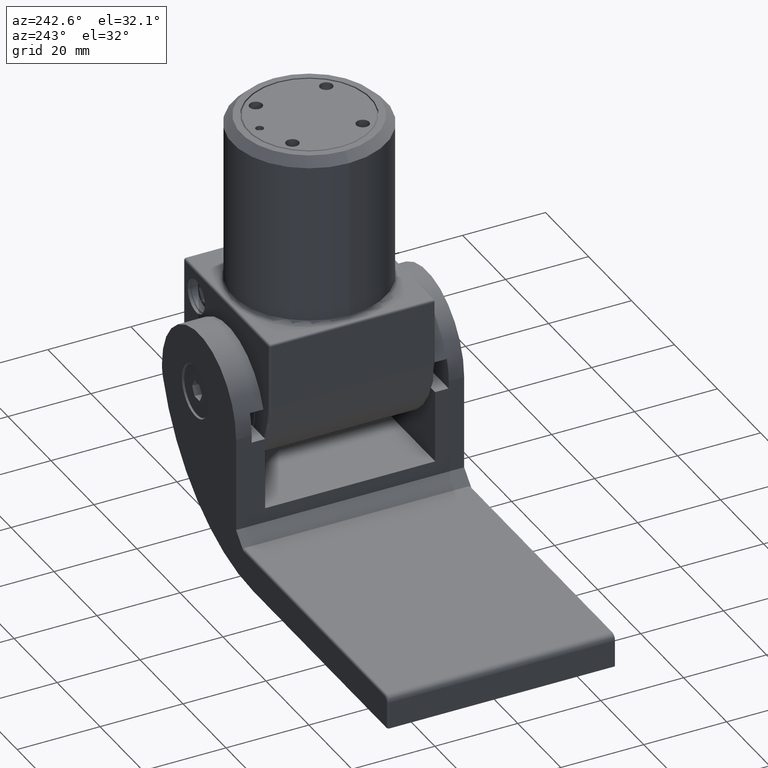
[diagram: clean part render]
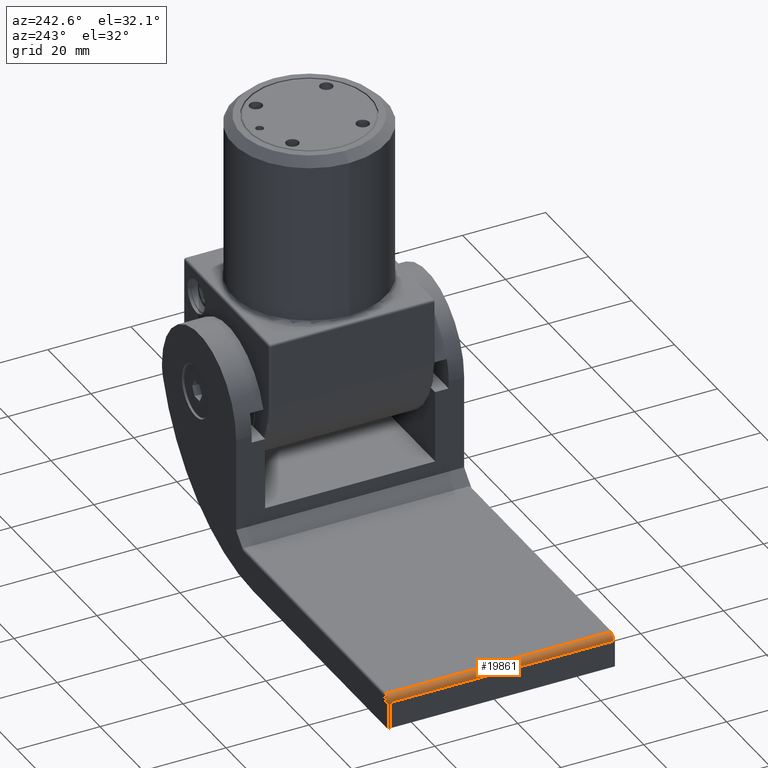
[diagram: same view with one face highlighted and labeled with its STEP entity id]
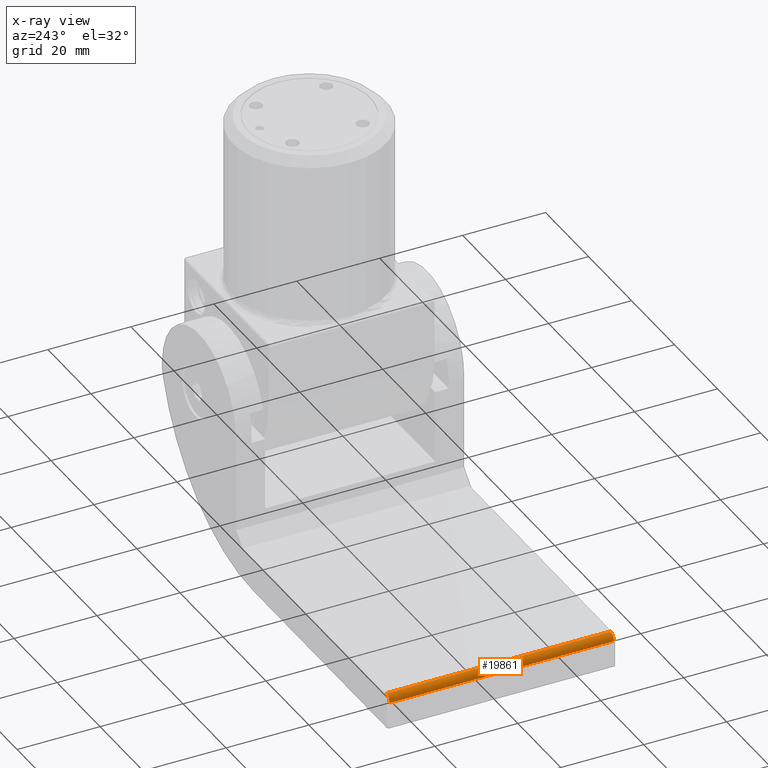
[diagram: x-ray of the same camera — body ghosted, the highlighted face saturated]
A machine part, auxiliary view. The second image highlights one B-rep face of the part: STEP entity #19861.
The next image is the same camera in x-ray: the body ghosted, the highlighted face saturated — about 0% of this face is hidden behind the body in this view.
In plain terms, the highlighted cylindrical surface (edge-blend (fillet) strip) has radius 1.5 mm, axis along (0, -1, 0).
Its self-contained STEP definition (entity closure, byte-faithful):
#156 = VERTEX_POINT ( 'NONE', #12671 ) ;
#540 = DIRECTION ( 'NONE',  ( 0.000000000000000000, 0.000000000000000000, -1.000000000000000000 ) ) ;
#724 = DIRECTION ( 'NONE',  ( -0.000000000000000000, -1.000000000000000000, -0.000000000000000000 ) ) ;
#781 = VERTEX_POINT ( 'NONE', #19063 ) ;
#956 = VERTEX_POINT ( 'NONE', #3672 ) ;
#1053 = AXIS2_PLACEMENT_3D ( 'NONE', #1369, #15757, #18713 ) ;
#1369 = CARTESIAN_POINT ( 'NONE',  ( -50.99999999999999289, -27.00000000000000000, -19.00000000000000000 ) ) ;
#2253 = CIRCLE ( 'NONE', #1053, 1.500000000000001332 ) ;
#3287 = CIRCLE ( 'NONE', #11523, 1.500000000000001332 ) ;
#3672 = CARTESIAN_POINT ( 'NONE',  ( -52.49999999999999289, -27.00000000000000000, -19.00000000000000000 ) ) ;
#4929 = EDGE_CURVE ( 'NONE', #956, #781, #14474, .T. ) ;
#5233 = CARTESIAN_POINT ( 'NONE',  ( -50.99999999999999289, 27.50000000000000000, -19.00000000000000000 ) ) ;
#5302 = DIRECTION ( 'NONE',  ( 0.000000000000000000, -1.000000000000000000, 0.000000000000000000 ) ) ;
#6314 = VECTOR ( 'NONE', #10866, 1000.000000000000000 ) ;
#6517 = ORIENTED_EDGE ( 'NONE', *, *, #8434, .T. ) ;
#6584 = VERTEX_POINT ( 'NONE', #10797 ) ;
#7962 = AXIS2_PLACEMENT_3D ( 'NONE', #5233, #5302, #540 ) ;
#8434 = EDGE_CURVE ( 'NONE', #6584, #781, #3287, .T. ) ;
#8889 = ORIENTED_EDGE ( 'NONE', *, *, #12916, .T. ) ;
#9459 = DIRECTION ( 'NONE',  ( -0.000000000000000000, 1.000000000000000000, -0.000000000000000000 ) ) ;
#10190 = VECTOR ( 'NONE', #9459, 1000.000000000000000 ) ;
#10797 = CARTESIAN_POINT ( 'NONE',  ( -50.99999999999999289, 27.00000000000000000, -17.49999999999999645 ) ) ;
#10866 = DIRECTION ( 'NONE',  ( 0.000000000000000000, -1.000000000000000000, 0.000000000000000000 ) ) ;
#11002 = CARTESIAN_POINT ( 'NONE',  ( -50.99999999999999289, 27.50000000000000000, -17.49999999999999645 ) ) ;
#11046 = EDGE_CURVE ( 'NONE', #6584, #156, #20332, .T. ) ;
#11523 = AXIS2_PLACEMENT_3D ( 'NONE', #14976, #724, #13435 ) ;
#12671 = CARTESIAN_POINT ( 'NONE',  ( -50.99999999999999289, -27.00000000000000000, -17.49999999999999645 ) ) ;
#12916 = EDGE_CURVE ( 'NONE', #956, #156, #2253, .T. ) ;
#13435 = DIRECTION ( 'NONE',  ( 0.000000000000000000, 0.000000000000000000, 1.000000000000000000 ) ) ;
#13871 = CYLINDRICAL_SURFACE ( 'NONE', #7962, 1.500000000000001332 ) ;
#14281 = ORIENTED_EDGE ( 'NONE', *, *, #11046, .F. ) ;
#14474 = LINE ( 'NONE', #19164, #10190 ) ;
#14976 = CARTESIAN_POINT ( 'NONE',  ( -50.99999999999999289, 27.00000000000000000, -19.00000000000000000 ) ) ;
#15730 = EDGE_LOOP ( 'NONE', ( #19206, #8889, #14281, #6517 ) ) ;
#15757 = DIRECTION ( 'NONE',  ( 0.000000000000000000, 1.000000000000000000, 0.000000000000000000 ) ) ;
#18086 = FACE_OUTER_BOUND ( 'NONE', #15730, .T. ) ;
#18713 = DIRECTION ( 'NONE',  ( 0.000000000000000000, 0.000000000000000000, 1.000000000000000000 ) ) ;
#19063 = CARTESIAN_POINT ( 'NONE',  ( -52.49999999999999289, 27.00000000000000000, -19.00000000000000000 ) ) ;
#19164 = CARTESIAN_POINT ( 'NONE',  ( -52.49999999999999289, 27.50000000000000000, -19.00000000000000000 ) ) ;
#19206 = ORIENTED_EDGE ( 'NONE', *, *, #4929, .F. ) ;
#19861 = ADVANCED_FACE ( 'NONE', ( #18086 ), #13871, .T. ) ;
#20332 = LINE ( 'NONE', #11002, #6314 ) ;